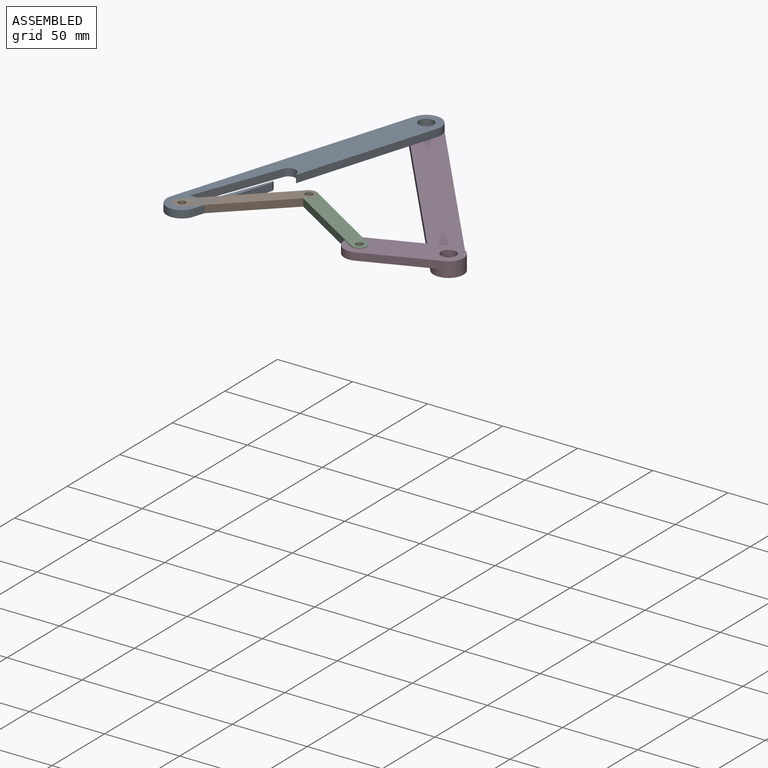
[diagram: assembled view]
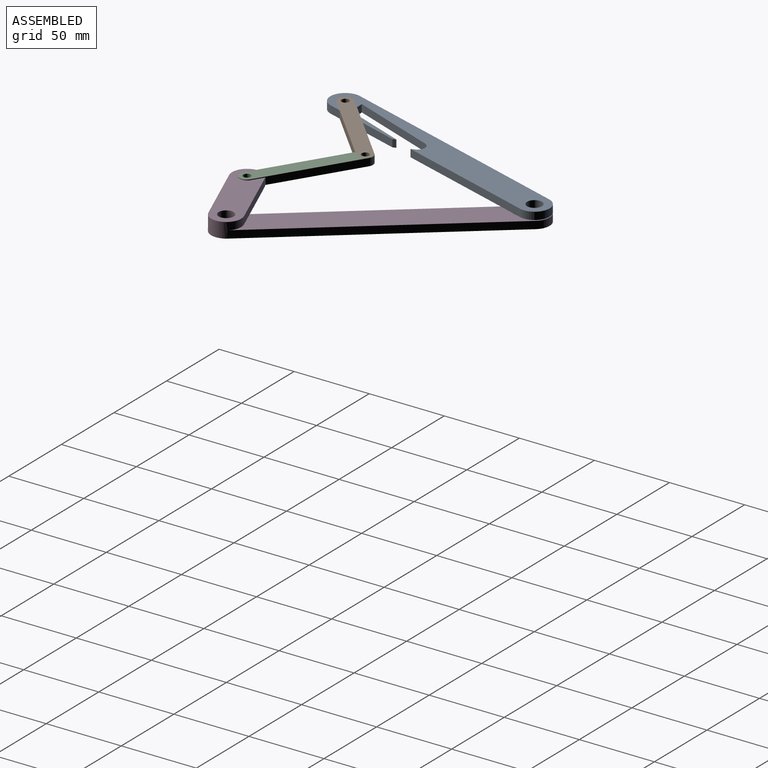
[diagram: assembled view, second angle]
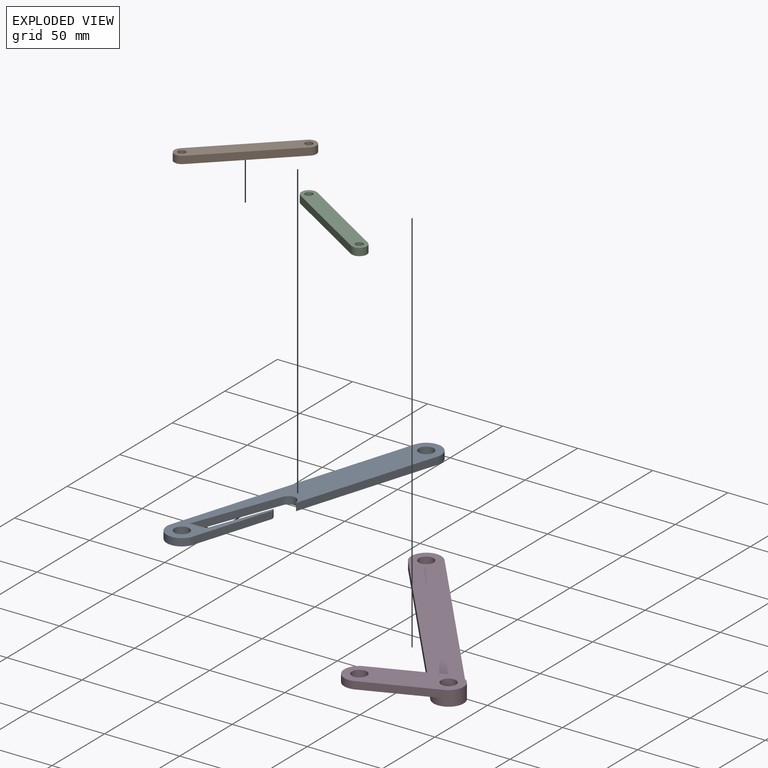
[diagram: exploded view]
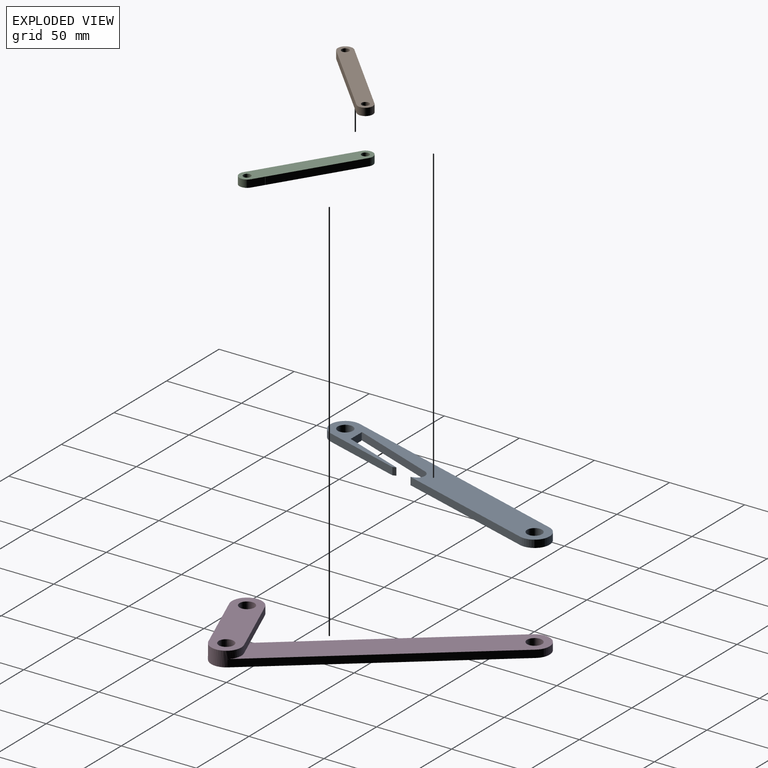
[diagram: exploded view, second angle]
ASSEMBLY  parts=4 mates=4
PART A: 16 faces, bbox 70x181.1x5 mm
  f0: plane 93.21x28.94mm, normal (0.96,-0.3,0), area 488mm2, adj f1,f12,f14,f15
  f1: cylinder r=10mm len=19.55mm, axis (0,0,-1), area 157.1mm2, adj f0,f2,f14,f15
  f2: plane 161.06x50mm, normal (-0.96,0.3,0), area 843.2mm2, adj f1,f3,f14,f15
  f3: cylinder r=10mm len=19.55mm, axis (0,0,-1), area 157.1mm2, adj f2,f4,f14,f15
  f4: plane 52.38x16.26mm, normal (0.96,-0.3,0), area 274.2mm2, adj f3,f5,f14,f15
  f5: plane 5x2.13mm, normal (0.93,0.36,0), area 11.4mm2, adj f4,f6,f14,f15
  f6: plane 41.55x15.84mm, normal (-0.93,0.36,0), area 222.3mm2, adj f5,f7,f14,f15
  f7: plane 9.16x5mm, normal (0,1,0), area 45.8mm2, adj f6,f8,f14,f15
  f8: cylinder r=10mm len=5mm, axis (0,0,-1), area 8mm2, adj f7,f9,f14,f15
  f9: plane 57.49x21.92mm, normal (0.93,-0.36,0), area 307.6mm2, adj f8,f10,f14,f15
  f10: cylinder r=5mm len=9.34mm, axis (0,0,-1), area 60.3mm2, adj f9,f12,f14,f15
  f11: cylinder r=5mm len=10mm, axis (0,0,-1), area 157.1mm2, adj f14,f15
  f12: plane 5x2.47mm, normal (-0.93,-0.36,0), area 13.2mm2, adj f0,f10,f14,f15
  f13: cylinder r=5mm len=10mm, axis (0,0,-1), area 157.1mm2, adj f14,f15
  f14: plane 181.06x70mm, normal (0,0,1), area 2880.2mm2, adj f0,f1,f2,f3,f4,f5,f6,f7
  f15: plane 181.06x70mm, normal (0,0,-1), area 2880.2mm2, adj f0,f1,f2,f3,f4,f5,f6,f7
PART B: 8 faces, bbox 35x75.6x5 mm
  f0: plane 65.58x25mm, normal (0.93,-0.36,0), area 350.9mm2, adj f1,f4,f6,f7
  f1: cylinder r=5mm len=9.67mm, axis (0,0,-1), area 78.5mm2, adj f0,f2,f6,f7
  f2: plane 65.58x25mm, normal (-0.93,0.36,0), area 350.9mm2, adj f1,f4,f6,f7
  f3: cylinder r=2.5mm len=5mm, axis (0,0,-1), area 78.5mm2, adj f6,f7
  f4: cylinder r=5mm len=9.67mm, axis (0,0,-1), area 78.5mm2, adj f0,f2,f6,f7
  f5: cylinder r=2.5mm len=5mm, axis (0,0,-1), area 78.5mm2, adj f6,f7
  f6: plane 75.58x35mm, normal (0,0,1), area 741.1mm2, adj f0,f1,f2,f3,f4,f5
  f7: plane 75.58x35mm, normal (0,0,-1), area 741.1mm2, adj f0,f1,f2,f3,f4,f5
PART C: 11 faces, bbox 35x75.6x5 mm
  f0: plane 57.36x21.87mm, normal (0.93,0.36,0), area 307mm2, adj f1,f7,f9,f10
  f1: cylinder r=5mm len=9.67mm, axis (0,0,-1), area 78.5mm2, adj f0,f2,f9,f10
  f2: plane 65.58x25mm, normal (-0.93,-0.36,0), area 350.9mm2, adj f1,f3,f9,f10
  f3: cylinder r=5mm len=9.67mm, axis (0,0,-1), area 78.5mm2, adj f2,f4,f9,f10
  f4: plane 8.09x5mm, normal (0.93,0.36,0), area 43.3mm2, adj f3,f5,f9,f10
  f5: cylinder r=10mm len=5mm, axis (0,0,-1), area 8mm2, adj f4,f7,f9,f10
  f6: cylinder r=2.5mm len=5mm, axis (0,0,-1), area 78.5mm2, adj f9,f10
  f7: plane 5x1.54mm, normal (0,-1,0), area 7.7mm2, adj f0,f5,f9,f10
  f8: cylinder r=2.5mm len=5mm, axis (0,0,-1), area 78.5mm2, adj f9,f10
  f9: plane 75.58x35mm, normal (0,0,1), area 741.1mm2, adj f0,f1,f2,f3,f4,f5,f6,f7
  f10: plane 75.58x35mm, normal (0,0,-1), area 741.1mm2, adj f0,f1,f2,f3,f4,f5,f6,f7
PART D: 15 faces, bbox 70x181.1x10 mm
  f0: plane 168.1x69.55mm, normal (0,0,1), area 3252.2mm2, adj f1,f2,f3,f5,f6,f9
  f1: plane 161.06x50mm, normal (0.96,0.3,0), area 843.2mm2, adj f0,f2,f5,f7
  f2: cylinder r=10mm len=19.55mm, axis (0,0,1), area 157.1mm2, adj f0,f1,f3,f7
  f3: plane 161.06x50mm, normal (-0.96,-0.3,0), area 843.2mm2, adj f0,f2,f5,f7,f8
  f4: cylinder r=5mm len=10mm, axis (0,0,1), area 314.2mm2, adj f7,f14
  f5: cylinder r=10mm len=20mm, axis (0,0,1), area 314.2mm2, adj f0,f1,f3,f7,f8,f9,f12,f14
  f6: cylinder r=5mm len=10mm, axis (0,0,1), area 157.1mm2, adj f0,f7
  f7: plane 181.06x70mm, normal (0,0,-1), area 3529.9mm2, adj f1,f2,f3,f4,f5,f6
  f8: plane 60x20mm, normal (0,0,-1), area 879.2mm2, adj f3,f5,f9,f10,f11,f12,f13
  f9: plane 48.46x5mm, normal (0,1,0), area 242.3mm2, adj f0,f5,f8,f10,f14
  f10: plane 5x0.13mm, normal (-0.93,-0.36,0), area 0.7mm2, adj f8,f9,f11,f14
  f11: cylinder r=10mm len=20mm, axis (0,0,-1), area 165mm2, adj f8,f10,f12,f14
  f12: plane 50x5mm, normal (0,-1,0), area 250mm2, adj f5,f8,f11,f14
  f13: cylinder r=5mm len=10mm, axis (0,0,-1), area 157.1mm2, adj f8,f14
  f14: plane 70x20mm, normal (0,0,1), area 1157mm2, adj f4,f5,f9,f10,f11,f12,f13
PLACE A t=(26.22,7.52,59.57)mm fixed
PLACE B rot(axis=(0,0,-1),25.1deg) t=(21.48,-13.73,59.57)mm
PLACE C rot(axis=(0,0,1),37.2deg) t=(86.29,19.14,59.57)mm
PLACE D rot(axis=(0,0,1),21.9deg) t=(86.29,19.14,59.07)mm
MATE revolute A.f13 <-> B.f3  axis (0,0,-1) through (-23.78,7.52,59.57)mm
MATE revolute D.f6 <-> A.f11  axis (0,0,1) through (26.22,168.58,59.07)mm
MATE revolute D.f13 <-> C.f6  axis (0,0,-1) through (86.29,19.14,64.07)mm
MATE revolute B.f1 <-> C.f1  axis (0,0,-1) through (26.72,56.26,59.57)mm
